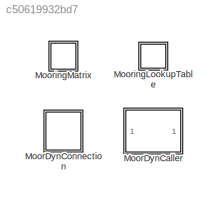
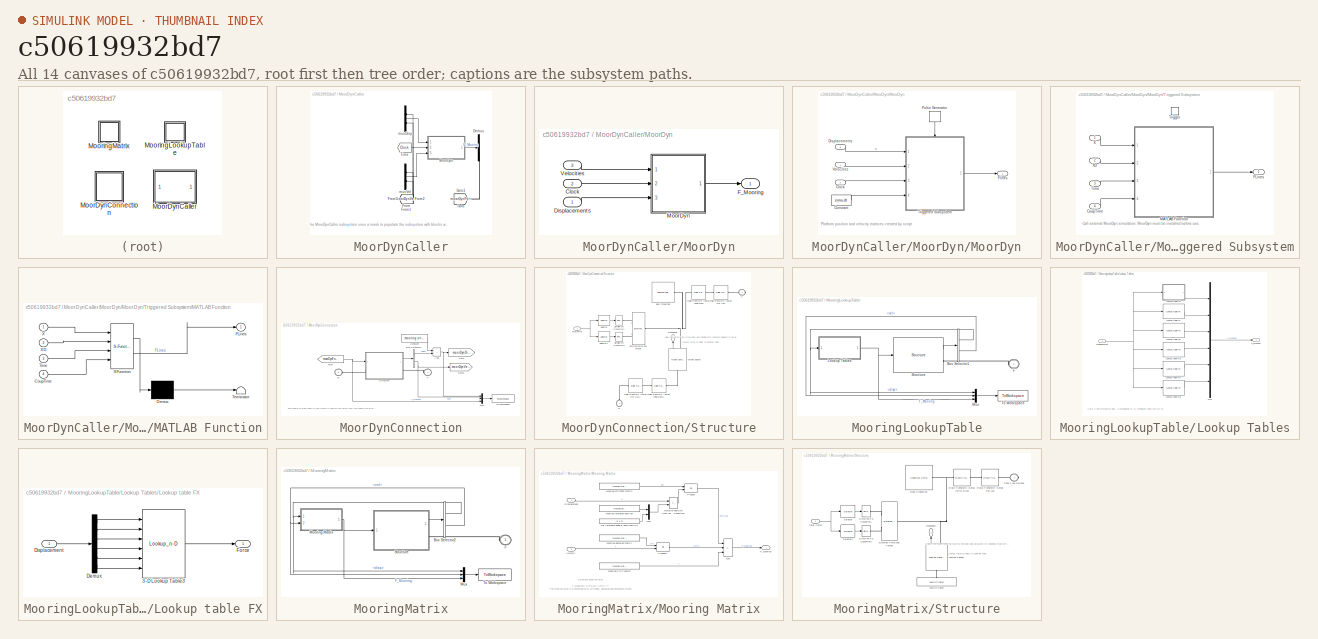
[diagram: thumbnail index - all 14 canvases of the model, root first then tree order]
MODEL slx_c50619932bd7
KIND library
CONFIG AbsTol = auto
CONFIG EnableMultiTasking = off
CONFIG FixedStep = auto
CONFIG MaxStep = auto
CONFIG MinStep = auto
CONFIG RelTol = 1e-3
CONFIG SampleTimeConstraint = Unconstrained
CONFIG SolverName = VariableStepAuto
CONFIG StartTime = 0.0
CONFIG StopTime = 10.0
BLOCK [SubSystem] MoorDynCaller
  Ports = []
BLOCK [Demux] MoorDynCaller/Demux
  Outputs = 2
  Ports = [1, 2]
BLOCK [From] MoorDynCaller/From
  GotoTag = moorDynDisp1
  TagVisibility = global
BLOCK [From] MoorDynCaller/From1
  GotoTag = moorDynVel1
  TagVisibility = global
BLOCK [From] MoorDynCaller/From2
  GotoTag = moorDynDisp2
BLOCK [From] MoorDynCaller/From3
  GotoTag = moorDynVel2
BLOCK [Goto] MoorDynCaller/Goto
  GotoTag = moorDynForce1
  TagVisibility = global
BLOCK [Goto] MoorDynCaller/Goto1
  GotoTag = moorDynForce2
  TagVisibility = global
BLOCK [SubSystem] MoorDynCaller/MoorDyn
  Ports = [3, 1]
  VariantControl = sv_moorDyn
BLOCK [Inport] MoorDynCaller/MoorDyn/Clock
  Port = 2
BLOCK [Inport] MoorDynCaller/MoorDyn/Displacements
BLOCK [Outport] MoorDynCaller/MoorDyn/F_Mooring
BLOCK [SubSystem] MoorDynCaller/MoorDyn/MoorDyn
  Ports = [3, 1]
BLOCK [Inport] MoorDynCaller/MoorDyn/MoorDyn/Clock
  Port = 2
BLOCK [Constant] MoorDynCaller/MoorDyn/MoorDyn/Constant
  Value = simu.dt
BLOCK [Inport] MoorDynCaller/MoorDyn/MoorDyn/Displacements
  Port = 3
BLOCK [Outport] MoorDynCaller/MoorDyn/MoorDyn/Flines
BLOCK [DiscretePulseGenerator] MoorDynCaller/MoorDyn/MoorDyn/Pulse Generator
  Amplitude = simu.endTime
  NameLocation = right
  Period = 2*simu.dt
  Ports = [0, 1]
  PulseType = Time based
  PulseWidth = 50
BLOCK [SubSystem] MoorDynCaller/MoorDyn/MoorDyn/Triggered Subsystem
  Ports = [4, 1, 0, 1]
  TreatAsAtomicUnit = on
BLOCK [Inport] MoorDynCaller/MoorDyn/MoorDyn/Triggered Subsystem/CoupTime
  Port = 4
BLOCK [Outport] MoorDynCaller/MoorDyn/MoorDyn/Triggered Subsystem/FLines
  VarSizeSig = No
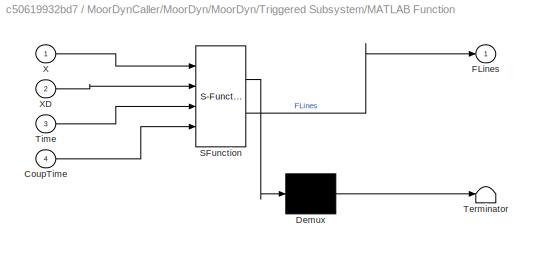
BLOCK [SubSystem] MoorDynCaller/MoorDyn/MoorDyn/Triggered Subsystem/MATLAB Function
  ErrorFcn = Stateflow.Translate.translate
  PermitHierarchicalResolution = ExplicitOnly
  Ports = [4, 1]
  SFBlockType = MATLAB Function
  TreatAsAtomicUnit = on
BLOCK [Demux] MoorDynCaller/MoorDyn/MoorDyn/Triggered Subsystem/MATLAB Function/ Demux 
  Outputs = 1
  Ports = [1, 1]
BLOCK [S-Function] MoorDynCaller/MoorDyn/MoorDyn/Triggered Subsystem/MATLAB Function/ SFunction 
  EnableBusSupport = off
  FunctionName = sf_sfun
  PortCounts = [4 2]
  Ports = [4, 2]
  SFcnIsStateOwnerBlock = off
  SFunctionDeploymentMode = off
  Tag = Stateflow S-Function 1
BLOCK [Terminator] MoorDynCaller/MoorDyn/MoorDyn/Triggered Subsystem/MATLAB Function/ Terminator 
BLOCK [Inport] MoorDynCaller/MoorDyn/MoorDyn/Triggered Subsystem/MATLAB Function/CoupTime
  Port = 4
BLOCK [Outport] MoorDynCaller/MoorDyn/MoorDyn/Triggered Subsystem/MATLAB Function/FLines
BLOCK [Inport] MoorDynCaller/MoorDyn/MoorDyn/Triggered Subsystem/MATLAB Function/Time
  Port = 3
BLOCK [Inport] MoorDynCaller/MoorDyn/MoorDyn/Triggered Subsystem/MATLAB Function/X
BLOCK [Inport] MoorDynCaller/MoorDyn/MoorDyn/Triggered Subsystem/MATLAB Function/XD
  Port = 2
BLOCK [Inport] MoorDynCaller/MoorDyn/MoorDyn/Triggered Subsystem/Time
  Port = 3
BLOCK [TriggerPort] MoorDynCaller/MoorDyn/MoorDyn/Triggered Subsystem/Trigger
  Ports = []
  StatesWhenEnabling = held
  TriggerType = either
  VariantControl = (inherit)
BLOCK [Inport] MoorDynCaller/MoorDyn/MoorDyn/Triggered Subsystem/X
BLOCK [Inport] MoorDynCaller/MoorDyn/MoorDyn/Triggered Subsystem/XD
  Port = 2
BLOCK [Inport] MoorDynCaller/MoorDyn/MoorDyn/Velocities
BLOCK [Inport] MoorDynCaller/MoorDyn/Velocities
  Port = 3
BLOCK [From] MoorDynCaller/Time
  GotoTag = Clock
  TagVisibility = global
BLOCK [Mux] MoorDynCaller/muxDisp
  DisplayOption = bar
  Inputs = 2
  Ports = [2, 1]
BLOCK [Mux] MoorDynCaller/muxVel
  DisplayOption = bar
  Inputs = 2
  Ports = [2, 1]
BLOCK [SubSystem] MoorDynConnection
  AttributesFormatString = %<mooring>
  Ports = [0, 0, 0, 0, 0, 2]
BLOCK [Sum] MoorDynConnection/Add
  IconShape = rectangular
  Ports = [2, 1]
BLOCK [PMIOPort] MoorDynConnection/B
  NameLocation = top
  Port = 2
  Side = Left
BLOCK [BusSelector] MoorDynConnection/Bus Selector2
  OutputSignals = disp,vel
  Ports = [1, 2]
BLOCK [Constant] MoorDynConnection/Constant
  Value = mooring.orientation
BLOCK [PMIOPort] MoorDynConnection/F
  Side = Left
BLOCK [From] MoorDynConnection/From
  GotoTag = moorDynForce1
  TagVisibility = global
BLOCK [Goto] MoorDynConnection/Goto
  GotoTag = moorDynDisp1
  TagVisibility = global
BLOCK [Goto] MoorDynConnection/Goto1
  GotoTag = moorDynVel1
  TagVisibility = global
BLOCK [Mux] MoorDynConnection/Mux
  DisplayOption = bar
  Inputs = 3
  Ports = [3, 1]
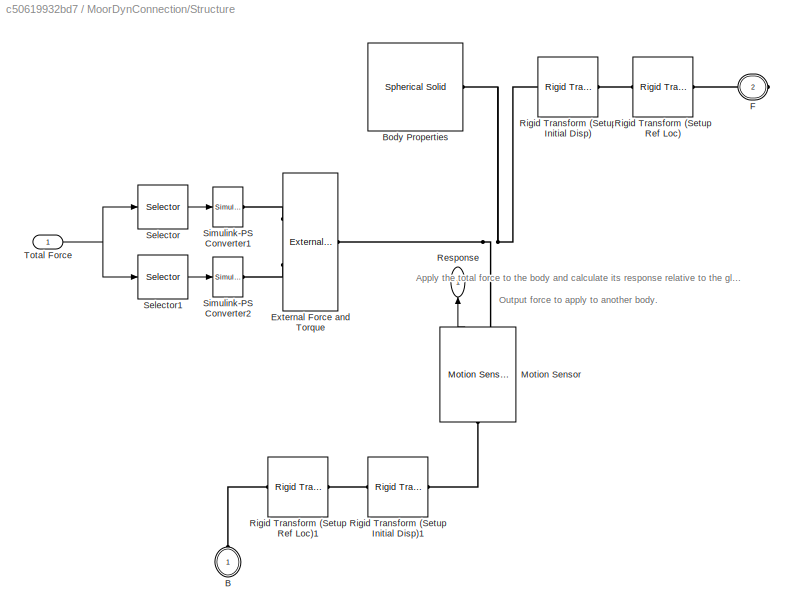
BLOCK [SubSystem] MoorDynConnection/Structure
  Ports = [1, 1, 0, 0, 0, 1, 1]
BLOCK [PMIOPort] MoorDynConnection/Structure/B
  NameLocation = left
  Side = Left
BLOCK [Reference] MoorDynConnection/Structure/Body Properties  REF=sm_lib/Body Elements/Spherical Solid
  Ports = [0, 0, 0, 0, 0, 0, 1]
  SourceBlock = sm_lib/Body Elements/Spherical Solid
  SourceType = Spherical Solid
BLOCK [Reference] MoorDynConnection/Structure/External Force and Torque  REF=sm_lib/Forces and
Torques/External Force
and Torque
  Ports = [0, 0, 0, 0, 0, 2, 1]
  SourceBlock = sm_lib/Forces and\nTorques/External Force\nand Torque
  SourceType = External Force\nand Torque
BLOCK [PMIOPort] MoorDynConnection/Structure/F
  Port = 2
  Side = Right
BLOCK [Reference] MoorDynConnection/Structure/Motion Sensor  REF=WECSim_Lib_Body_Elements/Rigid Body/Hydrodynamic Body/Structure/Motion Sensor
  NameLocation = left
  Ports = [0, 1, 0, 0, 0, 1, 1]
  SourceBlock = WECSim_Lib_Body_Elements/Rigid Body/Hydrodynamic Body/Structure/Motion Sensor
  SourceType = SubSystem
BLOCK [Outport] MoorDynConnection/Structure/Response
  NameLocation = left
BLOCK [Reference] MoorDynConnection/Structure/Rigid Transform (Setup Initial Disp)  REF=sm_lib/Frames and
Transforms/Rigid
Transform
  Ports = [0, 0, 0, 0, 0, 1, 1]
  SourceBlock = sm_lib/Frames and\nTransforms/Rigid\nTransform
  SourceType = Rigid\nTransform
BLOCK [Reference] MoorDynConnection/Structure/Rigid Transform (Setup Initial Disp)1  REF=sm_lib/Frames and
Transforms/Rigid
Transform
  Ports = [0, 0, 0, 0, 0, 1, 1]
  SourceBlock = sm_lib/Frames and\nTransforms/Rigid\nTransform
  SourceType = Rigid\nTransform
BLOCK [Reference] MoorDynConnection/Structure/Rigid Transform (Setup Ref Loc)  REF=sm_lib/Frames and
Transforms/Rigid
Transform
  Ports = [0, 0, 0, 0, 0, 1, 1]
  SourceBlock = sm_lib/Frames and\nTransforms/Rigid\nTransform
  SourceType = Rigid\nTransform
BLOCK [Reference] MoorDynConnection/Structure/Rigid Transform (Setup Ref Loc)1  REF=sm_lib/Frames and
Transforms/Rigid
Transform
  Ports = [0, 0, 0, 0, 0, 1, 1]
  SourceBlock = sm_lib/Frames and\nTransforms/Rigid\nTransform
  SourceType = Rigid\nTransform
BLOCK [Selector] MoorDynConnection/Structure/Selector
  IndexOptions = Index vector (dialog)
  Indices = [1:3]
  InputPortWidth = 6
  OutputSizes = 1
  Ports = [1, 1]
BLOCK [Selector] MoorDynConnection/Structure/Selector1
  IndexOptions = Index vector (dialog)
  Indices = [4:6]
  InputPortWidth = 6
  OutputSizes = 1
  Ports = [1, 1]
BLOCK [Reference] MoorDynConnection/Structure/Simulink-PS Converter1  REF=nesl_utility/Simulink-PS
Converter
  Ports = [1, 0, 0, 0, 0, 0, 1]
  SourceBlock = nesl_utility/Simulink-PS\nConverter
  SourceType = Simulink-PS\nConverter
BLOCK [Reference] MoorDynConnection/Structure/Simulink-PS Converter2  REF=nesl_utility/Simulink-PS
Converter
  Ports = [1, 0, 0, 0, 0, 0, 1]
  SourceBlock = nesl_utility/Simulink-PS\nConverter
  SourceType = Simulink-PS\nConverter
BLOCK [Inport] MoorDynConnection/Structure/Total Force
BLOCK [ToWorkspace] MoorDynConnection/To Workspace
  MaxDataPoints = inf
  Ports = [1]
  SampleTime = simu.dtOut
  SaveFormat = Structure With Time
  VariableName = mooring1_out
BLOCK [SubSystem] MooringLookupTable
  AttributesFormatString = %<mooring>
  Ports = [0, 0, 0, 0, 0, 1]
BLOCK [BusSelector] MooringLookupTable/Bus Selector1
  OutputSignals = disp,vel
  Ports = [1, 2]
BLOCK [PMIOPort] MooringLookupTable/F
  Side = Left
BLOCK [SubSystem] MooringLookupTable/Lookup Tables
  Ports = [1, 1]
BLOCK [Inport] MooringLookupTable/Lookup Tables/Displacement
BLOCK [Outport] MooringLookupTable/Lookup Tables/F_Mooring
BLOCK [SubSystem] MooringLookupTable/Lookup Tables/Lookup table FX
  Ports = [1, 1]
BLOCK [Lookup_n-D] MooringLookupTable/Lookup Tables/Lookup table FX/3-D Lookup Table3
  BreakpointsForDimension1 = mooring.lookupTable.X
  BreakpointsForDimension2 = mooring.lookupTable.Y
  BreakpointsForDimension3 = mooring.lookupTable.Z
  BreakpointsForDimension4 = mooring.lookupTable.RX
  BreakpointsForDimension5 = mooring.lookupTable.RY
  BreakpointsForDimension6 = mooring.lookupTable.RZ
  InputPortMap = u0,u1,u2,u3,u4,u5
  InternalRulePriority = Speed
  NumberOfTableDimensions = 6
  Ports = [6, 1]
  RndMeth = Simplest
  Table = forceComponent
BLOCK [Demux] MooringLookupTable/Lookup Tables/Lookup table FX/Demux
  Outputs = 6
  Ports = [1, 6]
BLOCK [Inport] MooringLookupTable/Lookup Tables/Lookup table FX/Displacement
BLOCK [Outport] MooringLookupTable/Lookup Tables/Lookup table FX/Force
BLOCK [Reference] MooringLookupTable/Lookup Tables/Lookup table FY  REF=$bdroot/MooringLookupTable/Lookup Tables/Lookup table FX
  Ports = [1, 1]
  SourceBlock = $bdroot/MooringLookupTable/Lookup Tables/Lookup table FX
BLOCK [Reference] MooringLookupTable/Lookup Tables/Lookup table FZ  REF=$bdroot/MooringLookupTable/Lookup Tables/Lookup table FX
  Ports = [1, 1]
  SourceBlock = $bdroot/MooringLookupTable/Lookup Tables/Lookup table FX
BLOCK [Reference] MooringLookupTable/Lookup Tables/Lookup table MX  REF=$bdroot/MooringLookupTable/Lookup Tables/Lookup table FX
  Ports = [1, 1]
  SourceBlock = $bdroot/MooringLookupTable/Lookup Tables/Lookup table FX
BLOCK [Reference] MooringLookupTable/Lookup Tables/Lookup table MY  REF=$bdroot/MooringLookupTable/Lookup Tables/Lookup table FX
  Ports = [1, 1]
  SourceBlock = $bdroot/MooringLookupTable/Lookup Tables/Lookup table FX
BLOCK [Reference] MooringLookupTable/Lookup Tables/Lookup table MZ  REF=$bdroot/MooringLookupTable/Lookup Tables/Lookup table FX
  Ports = [1, 1]
  SourceBlock = $bdroot/MooringLookupTable/Lookup Tables/Lookup table FX
BLOCK [Mux] MooringLookupTable/Lookup Tables/Mux
  DisplayOption = bar
  Inputs = 6
  Ports = [6, 1]
BLOCK [Mux] MooringLookupTable/Mux
  DisplayOption = bar
  Inputs = 3
  Ports = [3, 1]
BLOCK [Reference] MooringLookupTable/Structure  REF=$bdroot/MooringMatrix/Structure
  Ports = [1, 1, 0, 0, 0, 0, 1]
  SourceBlock = $bdroot/MooringMatrix/Structure
BLOCK [ToWorkspace] MooringLookupTable/To Workspace
  MaxDataPoints = inf
  Ports = [1]
  SampleTime = simu.dtOut
  SaveFormat = Structure With Time
  VariableName = mooring1_out
BLOCK [SubSystem] MooringMatrix
  AttributesFormatString = %<mooring>
  Ports = [0, 0, 0, 0, 0, 1]
BLOCK [BusSelector] MooringMatrix/Bus Selector2
  OutputSignals = disp,vel
  Ports = [1, 2]
BLOCK [PMIOPort] MooringMatrix/F
  Side = Left
BLOCK [SubSystem] MooringMatrix/Mooring Matrix
  Ports = [2, 1]
  VariantControl = sv_mooringMatrix
BLOCK [Inport] MooringMatrix/Mooring Matrix/Displacement
BLOCK [Outport] MooringMatrix/Mooring Matrix/F_Mooring
BLOCK [Constant] MooringMatrix/Mooring Matrix/Mooring Pre-Tension
  Value = mooring.matrix.preTension
BLOCK [Constant] MooringMatrix/Mooring Matrix/Mooring damping matrix
  Value = mooring.matrix.damping
BLOCK [Constant] MooringMatrix/Mooring Matrix/Mooring reference position
  Value = mooring.location
BLOCK [Constant] MooringMatrix/Mooring Matrix/Mooring stiffness matrix
  Value = mooring.matrix.stiffness
BLOCK [Mux] MooringMatrix/Mooring Matrix/Mux
  DisplayOption = bar
  Inputs = 2
  Ports = [2, 1]
BLOCK [Product] MooringMatrix/Mooring Matrix/Product
  Multiplication = Matrix(*)
  Ports = [2, 1]
BLOCK [Product] MooringMatrix/Mooring Matrix/Product1
  Multiplication = Matrix(*)
  Ports = [2, 1]
BLOCK [Sum] MooringMatrix/Mooring Matrix/Relative position from reference position
  IconShape = rectangular
  Inputs = +-
  Ports = [2, 1]
BLOCK [Constant] MooringMatrix/Mooring Matrix/Set reference angular positions to 0
  Value = [0 0 0]
BLOCK [Inport] MooringMatrix/Mooring Matrix/Velocity
  Port = 2
BLOCK [Sum] MooringMatrix/Mooring Matrix/sum
  IconShape = rectangular
  Inputs = --+
  Ports = [3, 1]
BLOCK [Mux] MooringMatrix/Mux
  DisplayOption = bar
  Inputs = 3
  Ports = [3, 1]
BLOCK [SubSystem] MooringMatrix/Structure
  Ports = [1, 1, 0, 0, 0, 0, 1]
BLOCK [Reference] MooringMatrix/Structure/Body Properties  REF=sm_lib/Body Elements/Spherical Solid
  Ports = [0, 0, 0, 0, 0, 0, 1]
  SourceBlock = sm_lib/Body Elements/Spherical Solid
  SourceType = Spherical Solid
BLOCK [PMIOPort] MooringMatrix/Structure/Conn Free Surface
  Side = Right
BLOCK [Reference] MooringMatrix/Structure/External Force and Torque  REF=sm_lib/Forces and
Torques/External Force
and Torque
  Ports = [0, 0, 0, 0, 0, 2, 1]
  SourceBlock = sm_lib/Forces and\nTorques/External Force\nand Torque
  SourceType = External Force\nand Torque
BLOCK [Reference] MooringMatrix/Structure/Motion Sensor  REF=WECSim_Lib_Body_Elements/Rigid Body/Hydrodynamic Body/Structure/Motion Sensor
  NameLocation = left
  Ports = [0, 1, 0, 0, 0, 1, 1]
  SourceBlock = WECSim_Lib_Body_Elements/Rigid Body/Hydrodynamic Body/Structure/Motion Sensor
  SourceType = SubSystem
BLOCK [Outport] MooringMatrix/Structure/Response
  NameLocation = left
BLOCK [Reference] MooringMatrix/Structure/Rigid Transform (Setup Initial Disp)  REF=sm_lib/Frames and
Transforms/Rigid
Transform
  Ports = [0, 0, 0, 0, 0, 1, 1]
  SourceBlock = sm_lib/Frames and\nTransforms/Rigid\nTransform
  SourceType = Rigid\nTransform
BLOCK [Reference] MooringMatrix/Structure/Rigid Transform (Setup Ref Loc)  REF=sm_lib/Frames and
Transforms/Rigid
Transform
  Ports = [0, 0, 0, 0, 0, 1, 1]
  SourceBlock = sm_lib/Frames and\nTransforms/Rigid\nTransform
  SourceType = Rigid\nTransform
BLOCK [Selector] MooringMatrix/Structure/Selector
  IndexOptions = Index vector (dialog)
  Indices = [1:3]
  InputPortWidth = 6
  OutputSizes = 1
  Ports = [1, 1]
BLOCK [Selector] MooringMatrix/Structure/Selector1
  IndexOptions = Index vector (dialog)
  Indices = [4:6]
  InputPortWidth = 6
  OutputSizes = 1
  Ports = [1, 1]
BLOCK [Reference] MooringMatrix/Structure/Simulink-PS Converter1  REF=nesl_utility/Simulink-PS
Converter
  Ports = [1, 0, 0, 0, 0, 0, 1]
  SourceBlock = nesl_utility/Simulink-PS\nConverter
  SourceType = Simulink-PS\nConverter
BLOCK [Reference] MooringMatrix/Structure/Simulink-PS Converter2  REF=nesl_utility/Simulink-PS
Converter
  Ports = [1, 0, 0, 0, 0, 0, 1]
  SourceBlock = nesl_utility/Simulink-PS\nConverter
  SourceType = Simulink-PS\nConverter
BLOCK [Inport] MooringMatrix/Structure/Total Force
BLOCK [Reference] MooringMatrix/Structure/World Frame  REF=sm_lib/Frames and
Transforms/World Frame
  NameLocation = right
  Ports = [0, 0, 0, 0, 0, 0, 1]
  SourceBlock = sm_lib/Frames and\nTransforms/World Frame
  SourceType = World Frame
BLOCK [ToWorkspace] MooringMatrix/To Workspace
  MaxDataPoints = inf
  Ports = [1]
  SampleTime = simu.dtOut
  SaveFormat = Structure With Time
  VariableName = mooring1_out
ANNOTATION MoorDynCaller: The MoorDynCaller subsystem uses a mask to populate the subsystem with blocks when WEC-Sim is run. To view the mask, right click on the MoorDynCaller subsystem and select view mask. The displacements and velocities from each MoorDyn connection within the WEC-Sim model are input into MoorDyn and the respective forces are output.
ANNOTATION MoorDynCaller/MoorDyn/MoorDyn: Platform position and velocity matrices created by script
ANNOTATION MoorDynCaller/MoorDyn/MoorDyn/Triggered Subsystem: Call external MoorDyn simulation. MoorDyn must be installed before use.
ANNOTATION MoorDynConnection: The MoorDyn block uses a from block to receive the force from the MoorDynCaller and goto blocks to send the displacement and velocity of the connection point to the MoorDynCaller.
ANNOTATION MoorDynConnection/Structure: Apply the total force to the body and calculate its response relative to the global reference frame. Output force to apply to another body.
ANNOTATION MooringLookupTable/Lookup Tables: Note: if performance is slow, a combination of 1x "prelookup" block with 6x "interpolation using prelookup" blocks may be used to improve performance.
ANNOTATION MooringMatrix/Mooring Matrix: Calculate Mooring force F_Mooring = Km*x_cg + Cm*v + T The mooring force is a combination of stiffness, damping and pretension forces.
ANNOTATION MooringMatrix/Structure: Apply the total mooring force to the body and calculate its response relative to the global reference frame. Output force to apply to another body.
CHART MoorDynCaller/MoorDyn/MoorDyn/Triggered
Subsystem/MATLAB Function states=1 transitions=1
  STATE_LABEL 'eML_blk_kernel()'
  STATE_LABEL 'SCRIPT:\nfunction FLines  = MoorDyn_matlab_FCN(X,XD,Time,CoupTime)\n\nFLines = zeros(1,length(X));\nFLines  = MoorDyn_matlab_FCN(X,XD,Time,CoupTime);\n\nend'
CHART  states=0 transitions=0
